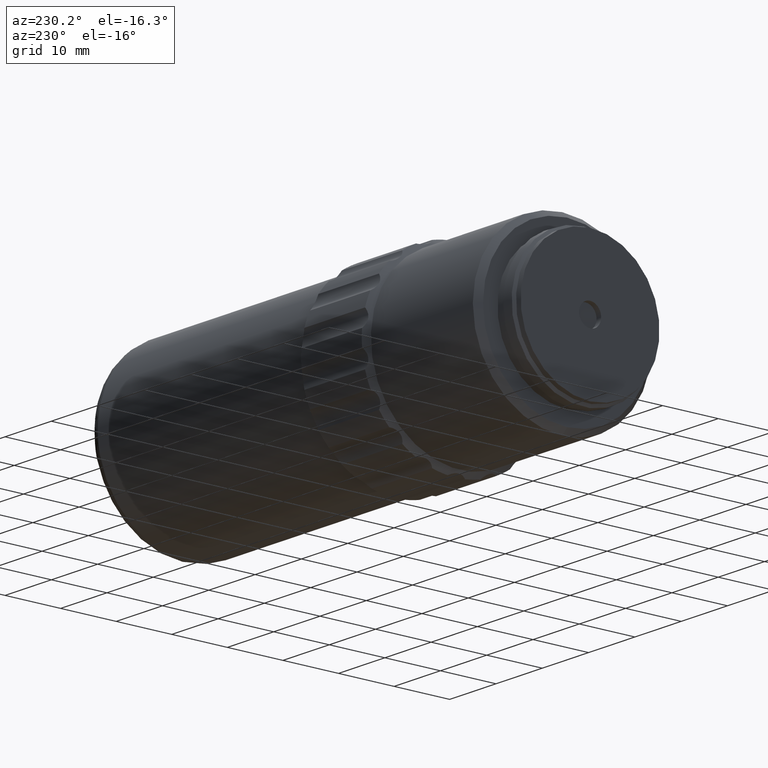
[diagram: clean part render]
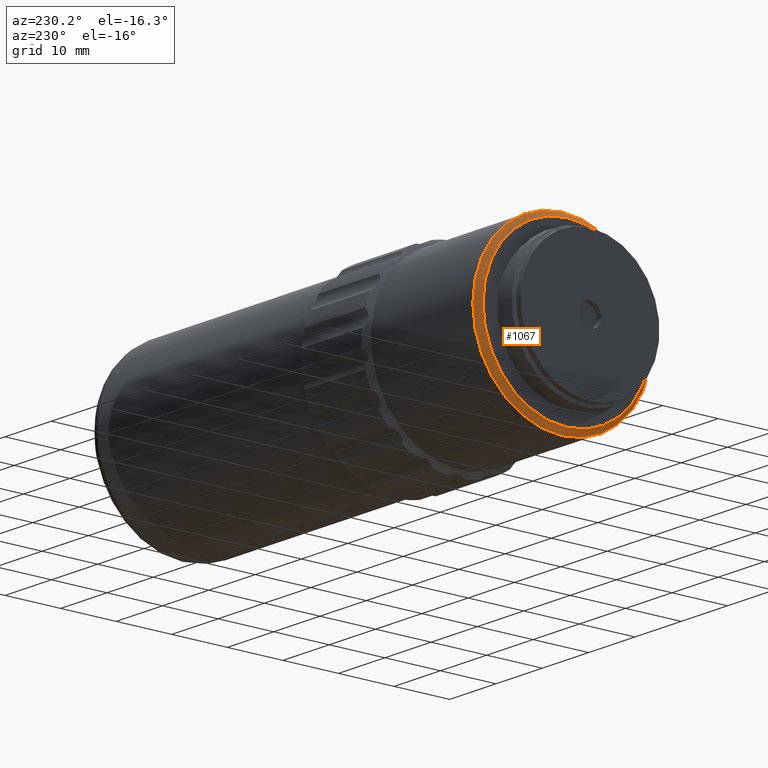
[diagram: same view with one face highlighted and labeled with its STEP entity id]
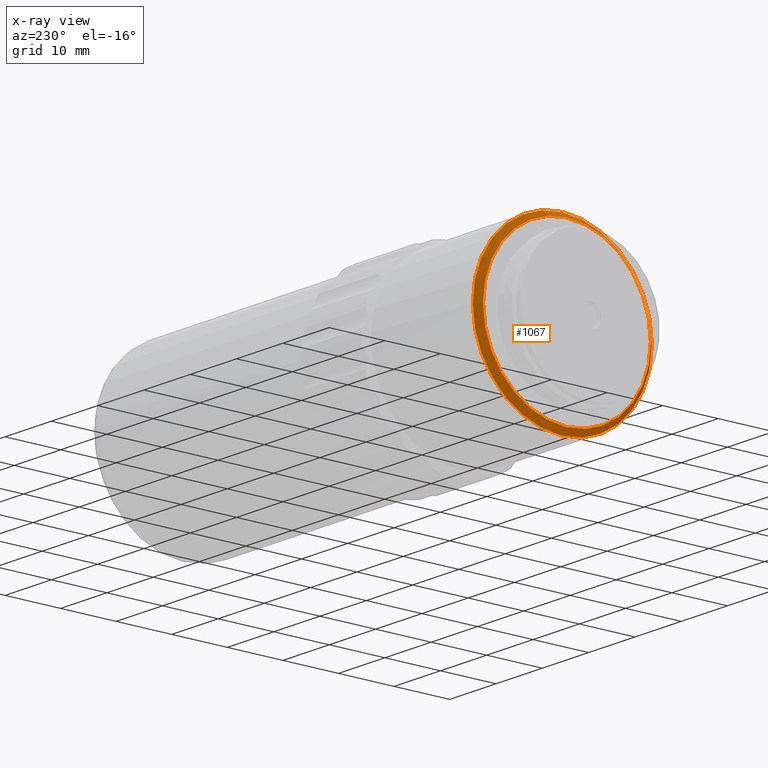
[diagram: x-ray of the same camera — body ghosted, the highlighted face saturated]
A machine part, auxiliary view. The second image highlights one B-rep face of the part: STEP entity #1067.
The next image is the same camera in x-ray: the body ghosted, the highlighted face saturated — about 0% of this face is hidden behind the body in this view.
In plain terms, the highlighted conical surface has half-angle 45 deg.
Its self-contained STEP definition (entity closure, byte-faithful):
#17 = FACE_BOUND ( 'NONE', #1462, .T. ) ;
#209 = DIRECTION ( 'NONE',  ( 0.000000000000000000, 0.000000000000000000, 1.000000000000000000 ) ) ;
#412 = CIRCLE ( 'NONE', #1736, 15.09999999999999964 ) ;
#515 = EDGE_CURVE ( 'NONE', #835, #835, #1141, .T. ) ;
#616 = AXIS2_PLACEMENT_3D ( 'NONE', #1965, #1801, #1636 ) ;
#621 = EDGE_LOOP ( 'NONE', ( #1390 ) ) ;
#744 = EDGE_CURVE ( 'NONE', #1320, #1320, #412, .T. ) ;
#835 = VERTEX_POINT ( 'NONE', #2015 ) ;
#1067 = ADVANCED_FACE ( 'NONE', ( #1154, #17 ), #1877, .T. ) ;
#1135 = DIRECTION ( 'NONE',  ( -5.744117470121878474E-17, 0.000000000000000000, -1.000000000000000000 ) ) ;
#1141 = CIRCLE ( 'NONE', #1957, 16.10000000000000142 ) ;
#1154 = FACE_OUTER_BOUND ( 'NONE', #621, .T. ) ;
#1175 = CARTESIAN_POINT ( 'NONE',  ( -3.553141965121202617, 46.02096199999999726, 0.000000000000000000 ) ) ;
#1320 = VERTEX_POINT ( 'NONE', #1332 ) ;
#1330 = DIRECTION ( 'NONE',  ( 1.000000000000000000, 0.000000000000000000, -5.387339987505611015E-17 ) ) ;
#1332 = CARTESIAN_POINT ( 'NONE',  ( -4.553141965121199064, 46.02096199999999726, -15.09999999999999964 ) ) ;
#1390 = ORIENTED_EDGE ( 'NONE', *, *, #515, .F. ) ;
#1462 = EDGE_LOOP ( 'NONE', ( #1643 ) ) ;
#1636 = DIRECTION ( 'NONE',  ( -5.387339987505611631E-17, 0.000000000000000000, -1.000000000000000000 ) ) ;
#1643 = ORIENTED_EDGE ( 'NONE', *, *, #744, .T. ) ;
#1736 = AXIS2_PLACEMENT_3D ( 'NONE', #1979, #1330, #1135 ) ;
#1801 = DIRECTION ( 'NONE',  ( 1.000000000000000000, 0.000000000000000000, -5.387339987505611015E-17 ) ) ;
#1824 = DIRECTION ( 'NONE',  ( 1.000000000000000000, -0.000000000000000000, -0.000000000000000000 ) ) ;
#1877 = CONICAL_SURFACE ( 'NONE', #616, 16.10000000000000142, 0.7853981633974526089 ) ;
#1957 = AXIS2_PLACEMENT_3D ( 'NONE', #1175, #1824, #209 ) ;
#1965 = CARTESIAN_POINT ( 'NONE',  ( -3.553141965121202617, 46.02096199999999726, 0.000000000000000000 ) ) ;
#1979 = CARTESIAN_POINT ( 'NONE',  ( -4.553141965121198176, 46.02096199999999726, 5.387339987505588212E-17 ) ) ;
#2015 = CARTESIAN_POINT ( 'NONE',  ( -3.553141965121202617, 46.02096199999999726, 16.10000000000000142 ) ) ;